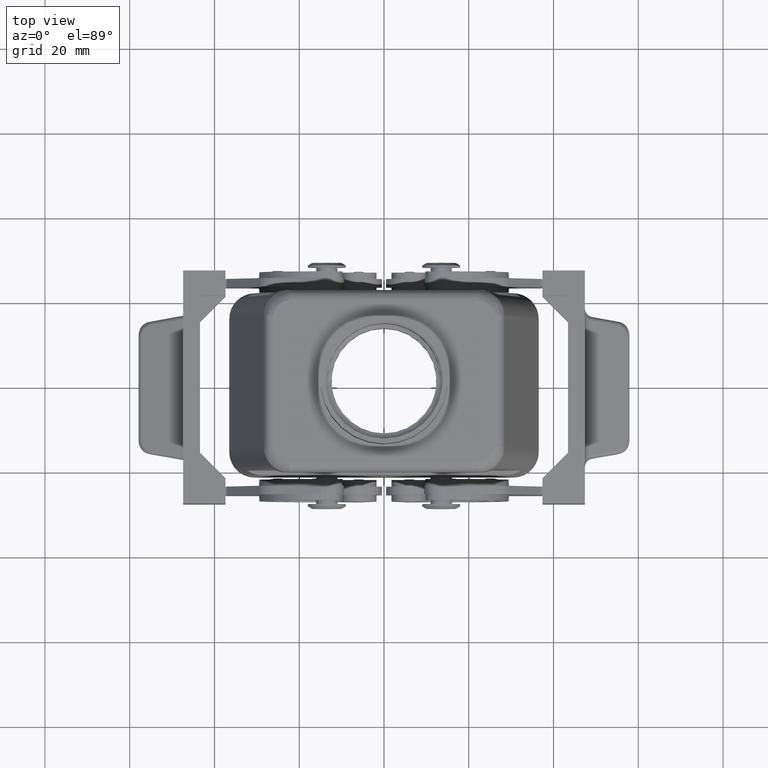
[diagram: clean part render]
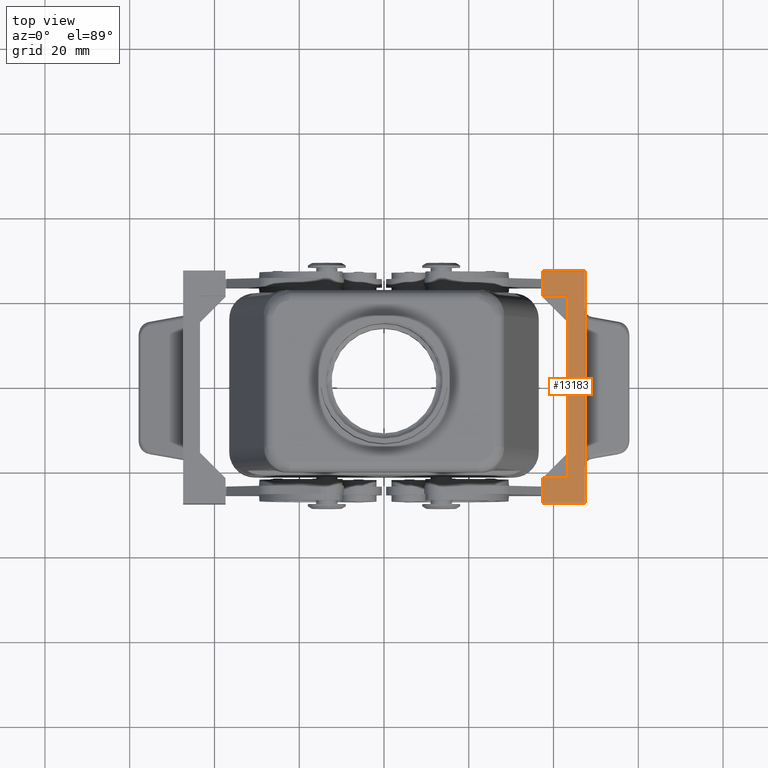
[diagram: same view with one face highlighted and labeled with its STEP entity id]
A machine part, top view. The second image highlights one B-rep face of the part: STEP entity #13183.
In plain terms, the highlighted planar face has unit normal (0, 0, 1).
Its self-contained STEP definition (entity closure, byte-faithful):
#11340=CARTESIAN_POINT('',(47.400000000000013,27.500000000000000,-6.500000000000012));
#11341=VERTEX_POINT('',#11340);
#11348=CARTESIAN_POINT('',(47.400000000000013,-27.500000000000000,-6.500000000000012));
#11349=VERTEX_POINT('',#11348);
#11350=CARTESIAN_POINT('',(47.400000000000013,-27.500000000000000,-6.500000000000012));
#11351=DIRECTION('',(0.0,1.0,0.0));
#11352=VECTOR('',#11351,55.0);
#11353=LINE('',#11350,#11352);
#11354=EDGE_CURVE('',#11349,#11341,#11353,.T.);
#12489=CARTESIAN_POINT('',(37.400000000000013,-27.500000000000000,-6.500000000000012));
#12490=VERTEX_POINT('',#12489);
#12491=CARTESIAN_POINT('',(37.400000000000013,-27.500000000000000,-6.500000000000012));
#12492=DIRECTION('',(1.0,0.0,0.0));
#12493=VECTOR('',#12492,10.0);
#12494=LINE('',#12491,#12493);
#12495=EDGE_CURVE('',#12490,#11349,#12494,.T.);
#12685=CARTESIAN_POINT('',(43.399999999999999,-21.500000000000007,-6.500000000000012));
#12686=VERTEX_POINT('',#12685);
#12693=CARTESIAN_POINT('',(43.399999999999999,21.500000000000007,-6.500000000000012));
#12694=VERTEX_POINT('',#12693);
#12695=CARTESIAN_POINT('',(43.399999999999999,21.500000000000007,-6.500000000000012));
#12696=DIRECTION('',(0.0,-1.0,0.0));
#12697=VECTOR('',#12696,43.000000000000014);
#12698=LINE('',#12695,#12697);
#12699=EDGE_CURVE('',#12694,#12686,#12698,.T.);
#12816=CARTESIAN_POINT('',(37.400000000000013,21.500000000000007,-6.500000000000012));
#12817=VERTEX_POINT('',#12816);
#12818=CARTESIAN_POINT('',(37.400000000000013,21.500000000000007,-6.500000000000012));
#12819=DIRECTION('',(1.0,0.0,0.0));
#12820=VECTOR('',#12819,5.999999999999986);
#12821=LINE('',#12818,#12820);
#12822=EDGE_CURVE('',#12817,#12694,#12821,.T.);
#12982=CARTESIAN_POINT('',(37.400000000000006,-21.500000000000007,-6.500000000000012));
#12983=VERTEX_POINT('',#12982);
#12990=CARTESIAN_POINT('',(43.399999999999999,-21.500000000000007,-6.500000000000012));
#12991=DIRECTION('',(-1.0,0.0,0.0));
#12992=VECTOR('',#12991,5.999999999999993);
#12993=LINE('',#12990,#12992);
#12994=EDGE_CURVE('',#12686,#12983,#12993,.T.);
#13044=CARTESIAN_POINT('',(37.400000000000013,27.500000000000000,-6.500000000000012));
#13045=VERTEX_POINT('',#13044);
#13046=CARTESIAN_POINT('',(37.400000000000013,21.500000000000007,-6.500000000000012));
#13047=DIRECTION('',(0.0,1.0,0.0));
#13048=VECTOR('',#13047,5.999999999999993);
#13049=LINE('',#13046,#13048);
#13050=EDGE_CURVE('',#12817,#13045,#13049,.T.);
#13108=CARTESIAN_POINT('',(37.400000000000013,-27.500000000000000,-6.500000000000012));
#13109=DIRECTION('',(0.0,1.0,0.0));
#13110=VECTOR('',#13109,5.999999999999993);
#13111=LINE('',#13108,#13110);
#13112=EDGE_CURVE('',#12490,#12983,#13111,.T.);
#13159=CARTESIAN_POINT('',(47.400000000000013,27.500000000000000,-6.500000000000012));
#13160=DIRECTION('',(-1.0,0.0,0.0));
#13161=VECTOR('',#13160,10.0);
#13162=LINE('',#13159,#13161);
#13163=EDGE_CURVE('',#11341,#13045,#13162,.T.);
#13168=CARTESIAN_POINT('',(37.400000000000013,0.0,-6.500000000000012));
#13169=DIRECTION('',(0.0,0.0,1.0));
#13170=DIRECTION('',(1.0,0.0,0.0));
#13171=AXIS2_PLACEMENT_3D('',#13168,#13169,#13170);
#13172=PLANE('',#13171);
#13173=ORIENTED_EDGE('',*,*,#12994,.T.);
#13174=ORIENTED_EDGE('',*,*,#13112,.F.);
#13175=ORIENTED_EDGE('',*,*,#12495,.T.);
#13176=ORIENTED_EDGE('',*,*,#11354,.T.);
#13177=ORIENTED_EDGE('',*,*,#13163,.T.);
#13178=ORIENTED_EDGE('',*,*,#13050,.F.);
#13179=ORIENTED_EDGE('',*,*,#12822,.T.);
#13180=ORIENTED_EDGE('',*,*,#12699,.T.);
#13181=EDGE_LOOP('',(#13173,#13174,#13175,#13176,#13177,#13178,#13179,#13180));
#13182=FACE_OUTER_BOUND('',#13181,.T.);
#13183=ADVANCED_FACE('',(#13182),#13172,.T.);